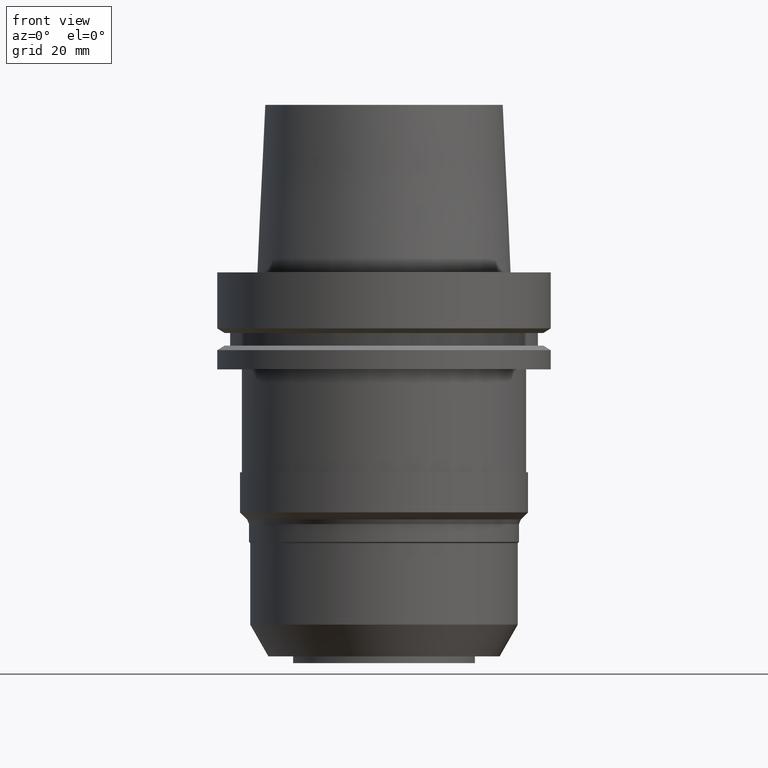
[diagram: clean part render]
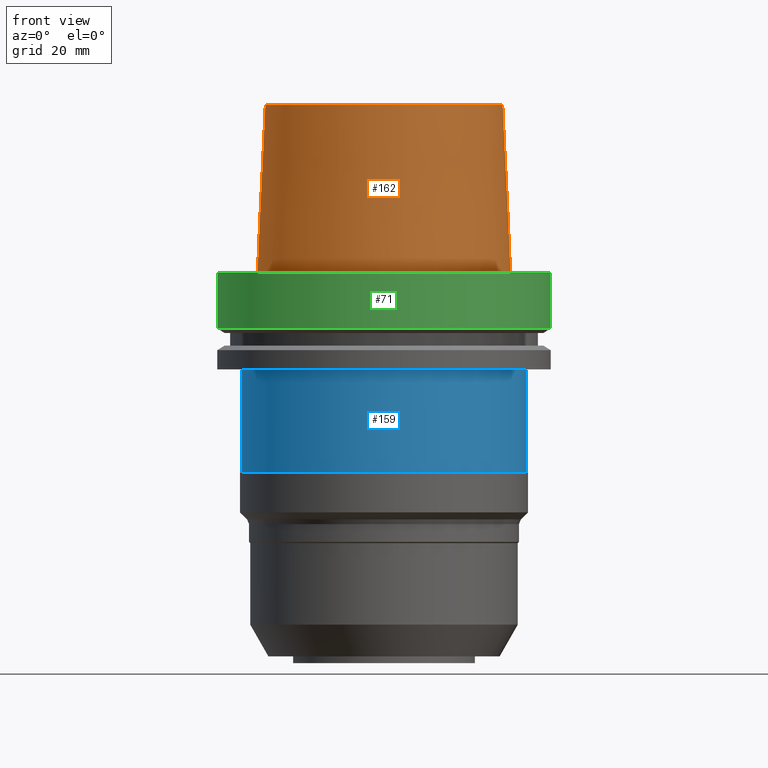
[diagram: same view with three faces highlighted in distinct colors, each labeled with its STEP entity id]
A machine part, front view with three faces highlighted in distinct colors.
Their STEP definitions:

[orange] entity #162 — the highlighted conical surface has half-angle 2.862 deg.
#91=EDGE_CURVE('Unnamed[1]',#236,#236,#237,.T.);
#109=EDGE_CURVE('Unnamed[1]',#265,#265,#266,.T.);
#162=ADVANCED_FACE('Unnamed[1]',(#347,#348),#349,.T.);
#236=VERTEX_POINT('',#433);
#237=CIRCLE('',#434,35.5000000015618);
#265=VERTEX_POINT('',#469);
#266=CIRCLE('',#470,37.9999999999349);
#347=FACE_BOUND('',#572,.T.);
#348=FACE_BOUND('',#573,.T.);
#349=CONICAL_SURFACE('',#574,36.7500000007484,0.0499583956894843);
#433=CARTESIAN_POINT('',(-3.06161699786838E-015,35.5000000015618,50.0));
#434=AXIS2_PLACEMENT_3D('',#656,#657,#658);
#469=CARTESIAN_POINT('',(-3.3636548776863E-032,37.9999999999349,-2.44634216324803E-015));
#470=AXIS2_PLACEMENT_3D('',#689,#690,#691);
#572=EDGE_LOOP('',(#781));
#573=EDGE_LOOP('',(#782));
#574=AXIS2_PLACEMENT_3D('',#783,#784,#785);
#656=CARTESIAN_POINT('',(-3.06161699786838E-015,-6.12323399573676E-015,50.0));
#657=DIRECTION('',(6.12323399573677E-017,1.22464679914774E-016,-1.0));
#658=DIRECTION('',(-1.23259516440767E-032,1.0,1.22464679914774E-016));
#689=CARTESIAN_POINT('',(0.0,0.0,0.0));
#690=DIRECTION('',(6.12323399573677E-017,1.22464679914704E-016,-1.0));
#691=DIRECTION('',(-1.23259516440805E-032,1.0,1.22464679914704E-016));
#781=ORIENTED_EDGE('',*,*,#109,.F.);
#782=ORIENTED_EDGE('',*,*,#91,.T.);
#783=CARTESIAN_POINT('',(-1.53080849893419E-015,-3.06161699786838E-015,25.0));
#784=DIRECTION('',(6.12323399573676E-017,1.22464679914694E-016,-1.0));
#785=DIRECTION('',(-1.23259516440762E-032,1.0,1.22464679914694E-016));

[blue] entity #159 — the highlighted cylindrical surface (bore or boss wall) has radius 42.5 mm, axis along (0, 0, -1).
#149=EDGE_CURVE('Unnamed[1]',#328,#328,#329,.T.);
#153=EDGE_CURVE('Unnamed[1]',#334,#334,#335,.T.);
#159=ADVANCED_FACE('Unnamed[1]',(#342,#343),#344,.T.);
#328=VERTEX_POINT('',#548);
#329=CIRCLE('',#549,42.5);
#334=VERTEX_POINT('',#556);
#335=CIRCLE('',#557,42.5000000000001);
#342=FACE_BOUND('',#566,.T.);
#343=FACE_BOUND('',#567,.T.);
#344=CYLINDRICAL_SURFACE('',#568,42.5000000000001);
#548=CARTESIAN_POINT('',(1.77573785876366E-015,42.5,-29.0));
#549=AXIS2_PLACEMENT_3D('',#760,#761,#762);
#556=CARTESIAN_POINT('',(3.65557069545485E-015,42.5000000000001,-59.6999999999999));
#557=AXIS2_PLACEMENT_3D('',#766,#767,#768);
#566=EDGE_LOOP('',(#775));
#567=EDGE_LOOP('',(#776));
#568=AXIS2_PLACEMENT_3D('',#777,#778,#779);
#760=CARTESIAN_POINT('',(1.77573785876366E-015,3.55147571752733E-015,-29.0));
#761=DIRECTION('',(6.12323399573677E-017,1.22464679914763E-016,-1.0));
#762=DIRECTION('',(-1.23259516440783E-032,1.0,1.22464679914763E-016));
#766=CARTESIAN_POINT('',(3.65557069545485E-015,7.31114139090969E-015,-59.7));
#767=DIRECTION('',(6.12323399573677E-017,1.22464679914762E-016,-1.0));
#768=DIRECTION('',(-1.23259516440783E-032,1.0,1.22464679914762E-016));
#775=ORIENTED_EDGE('',*,*,#153,.F.);
#776=ORIENTED_EDGE('',*,*,#149,.T.);
#777=CARTESIAN_POINT('',(2.71565427710925E-015,5.43130855421851E-015,-44.35));
#778=DIRECTION('',(6.12323399573677E-017,1.22464679914763E-016,-1.0));
#779=DIRECTION('',(-1.23259516440783E-032,1.0,1.22464679914763E-016));

[green] entity #71 — the highlighted cylindrical surface (bore or boss wall) has radius 50 mm, axis along (0, 0, -1).
#71=ADVANCED_FACE('Unnamed[1]',(#203,#204),#205,.T.);
#78=EDGE_CURVE('Unnamed[1]',#215,#215,#216,.T.);
#111=EDGE_CURVE('Unnamed[1]',#268,#268,#269,.T.);
#203=FACE_BOUND('',#392,.T.);
#204=FACE_BOUND('',#393,.T.);
#205=CYLINDRICAL_SURFACE('',#394,50.0);
#215=VERTEX_POINT('',#407);
#216=CIRCLE('',#408,50.0);
#268=VERTEX_POINT('',#473);
#269=CIRCLE('',#474,50.0);
#392=EDGE_LOOP('',(#618));
#393=EDGE_LOOP('',(#619));
#394=AXIS2_PLACEMENT_3D('',#620,#621,#622);
#407=CARTESIAN_POINT('',(-1.81547968506605E-031,50.0,-9.76766004263236E-016));
#408=AXIS2_PLACEMENT_3D('',#632,#633,#634);
#473=CARTESIAN_POINT('',(1.0257889421431E-015,50.0,-16.75240474));
#474=AXIS2_PLACEMENT_3D('',#692,#693,#694);
#618=ORIENTED_EDGE('',*,*,#111,.F.);
#619=ORIENTED_EDGE('',*,*,#78,.T.);
#620=CARTESIAN_POINT('',(5.12894471071548E-016,1.0257889421431E-015,-8.37620236999999));
#621=DIRECTION('',(6.12323399573677E-017,1.22464679914736E-016,-1.0));
#622=DIRECTION('',(-1.23259516440783E-032,1.0,1.22464679914736E-016));
#632=CARTESIAN_POINT('',(0.0,0.0,0.0));
#633=DIRECTION('',(6.12323399573677E-017,1.22464679914736E-016,-1.0));
#634=DIRECTION('',(-1.23259516440783E-032,1.0,1.22464679914736E-016));
#692=CARTESIAN_POINT('',(1.0257889421431E-015,2.05157788428619E-015,-16.75240474));
#693=DIRECTION('',(6.12323399573677E-017,1.22464679914736E-016,-1.0));
#694=DIRECTION('',(-1.23259516440783E-032,1.0,1.22464679914736E-016));